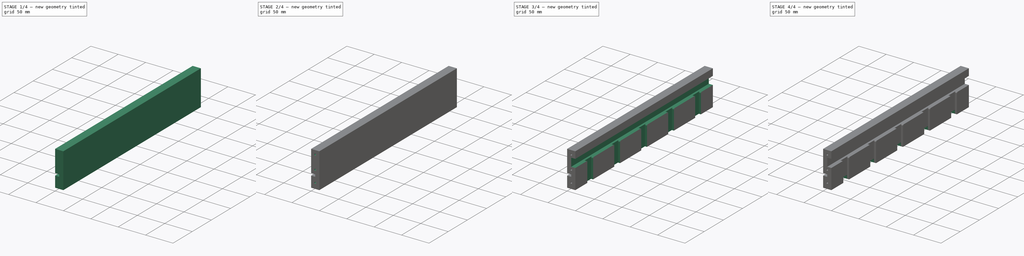
[diagram: build sequence overview — one tinted view per stage of 4, left to right]
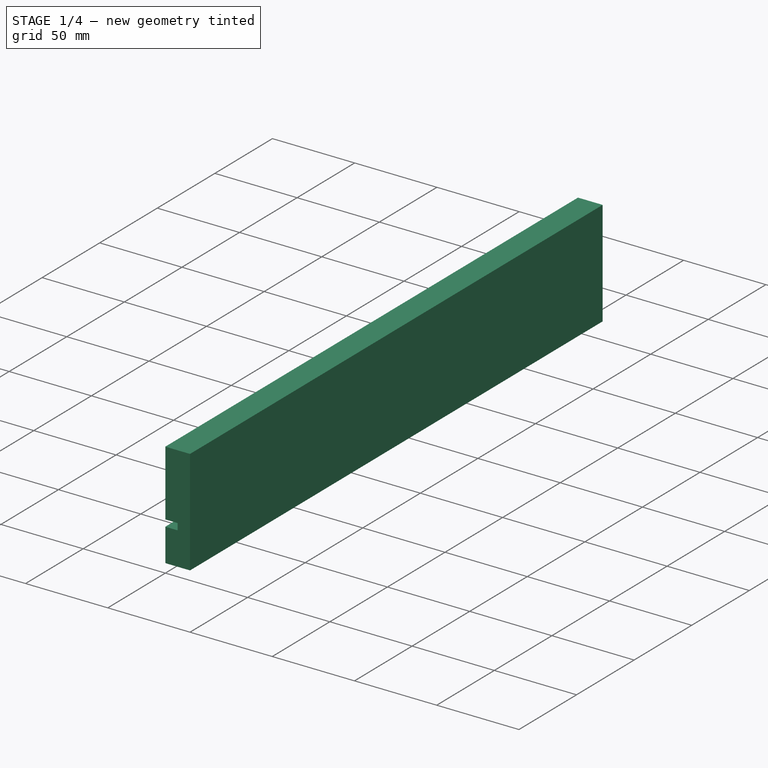
[diagram: stage 1 of 4 — iso view after this stage's code; geometry added in this stage tinted green]
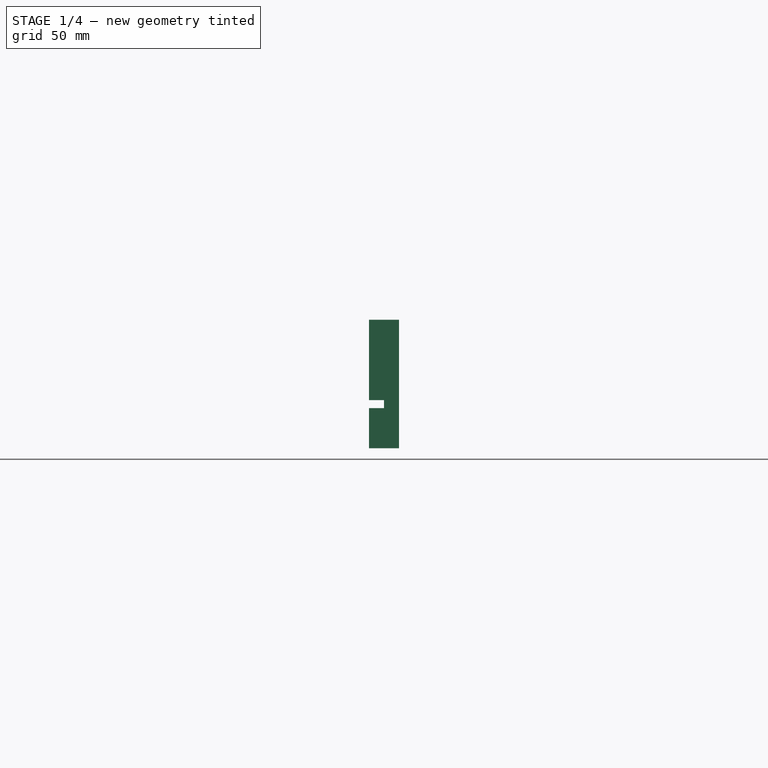
[diagram: stage 1 of 4 — front view after this stage's code; geometry added in this stage tinted green]
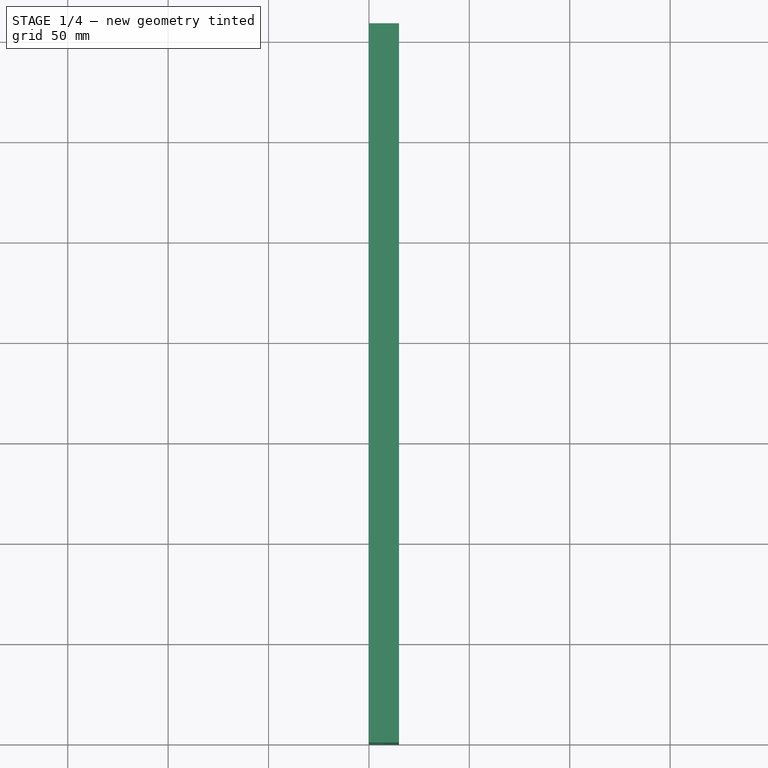
[diagram: stage 1 of 4 — top view after this stage's code; geometry added in this stage tinted green]
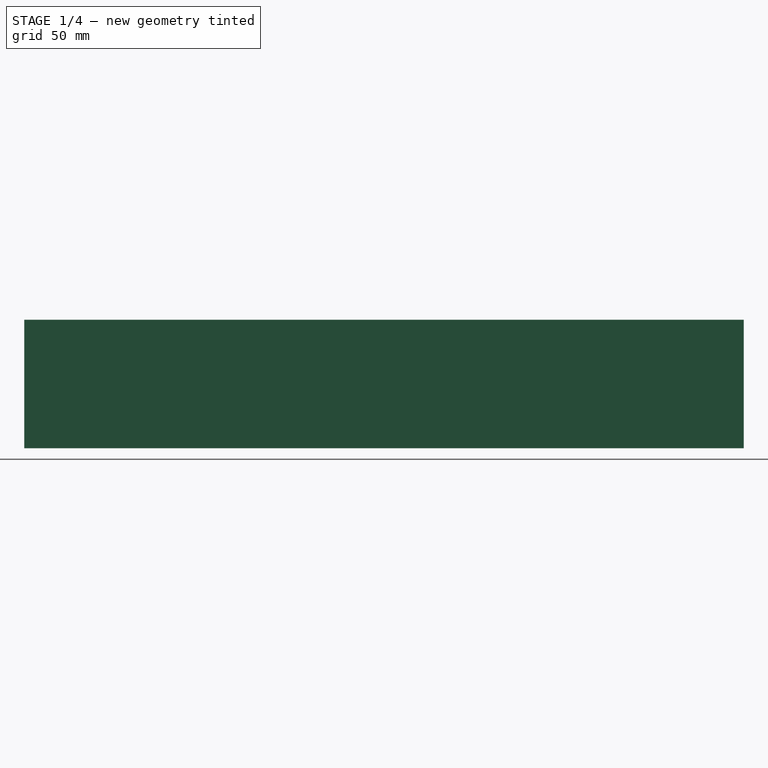
[diagram: stage 1 of 4 — right view after this stage's code; geometry added in this stage tinted green]
FCSTD DOCUMENT  (FreeCAD 0.19R24291 (Git))
Label: InnerRightWall
License: All rights reserved
LicenseURL: http://en.wikipedia.org/wiki/All_rights_reserved
objects: Sketcher::SketchObject×7, PartDesign::Pocket×6, PartDesign::CoordinateSystem×2, PartDesign::LinearPattern×2, PartDesign::MultiTransform×2, App::FeaturePython×1, PartDesign::Pad×1, PartDesign::Body×1, App::Part×1
note: 28 computed .brp shape members not serialized (recipe doc carries the construction recipe); baked Part::Feature solids carry a one-line shape summary decoded from their .brp

FEATURE [PartDesign::CoordinateSystem] LCS_0
  AttacherType = Attacher::AttachEngine3D
  MapMode = 2
  Support = -> [X_Axis]
FEATURE [PartDesign::CoordinateSystem] LCS_0001
  AttacherType = Attacher::AttachEngine3D
  MapMode = 2
  Support = -> [X_Axis001]
FEATURE [Sketcher::SketchObject] Sketch
  FullyConstrained = true
  MapMode = 5
  Placement = pos=(0,0,0) rot=(0.57735,0.57735,0.57735;2.0944rad)
  Support = -> [YZ_Plane001]
  expr: Constraints[7] = <<Attributes>>.InnerWallDepth
  expr: Constraints[8] = <<Attributes>>.DrawerHeight_DH
  sketch-geometry (4):
    g0: LineSegment StartX=358.3 StartY=0 StartZ=0 EndX=0 EndY=0 EndZ=0
    g1: LineSegment StartX=0 StartY=0 StartZ=0 EndX=0 EndY=64 EndZ=0
    g2: LineSegment StartX=0 StartY=64 StartZ=0 EndX=358.3 EndY=64 EndZ=0
    g3: LineSegment StartX=358.3 StartY=64 StartZ=0 EndX=358.3 EndY=0 EndZ=0
  constraints (11):
    c: Coincident(g0,g1)
    c: Coincident(g1,g2)
    c: Coincident(g2,g3)
    c: Horizontal(g0)
    c: Horizontal(g2)
    c: Vertical(g1)
    c: Vertical(g3)
    c: Distance(g2) = 358.3
    c: Distance(g3) = 64
    c: Coincident(g3,g0)
    c: Coincident(g-1,g0)
FEATURE [App::FeaturePython] PropertyBag  label="Attributes"  # WARN: FeaturePython — macro-defined, semantics opaque (R4)
  BackWidth = 395.8
  Back_Space = 100
  BottomDepth = 365.8
  BottomWidth = 365.8
  Bottom_Height_BH = 4
  Bottom_Space_Height = 20
  Box_Tolerance = 0.2
  Boxes_Depth = 5
  Boxes_Height = 40
  Boxes_Width = 5
  CableChannelHight = 15
  CableChannelRadius = 2
  CustomPropertyGroups = shape | attributes
  DrawerDepth_DD = 465.8
  DrawerHeight_DH = 64
  DrawerWidth_DW = 410.8
  InnerWallDepth = 358.3
  ScrewPreWhole = 3
  ScrewPreWholeDepth = 20
  WallThickness_WT = 15
  expr: BottomDepth = Boxes_Depth * 70mm + WallThickness_WT + Box_Tolerance * (Boxes_Width - 1)
  expr: DrawerHeight_DH = Boxes_Height + Bottom_Height_BH + Bottom_Space_Height
  expr: BackWidth = DrawerWidth_DW - WallThickness_WT
  expr: DrawerWidth_DW = Boxes_Width * 70mm + WallThickness_WT * 4 + Box_Tolerance * (Boxes_Width - 1)
  expr: BottomWidth = Boxes_Width * 70mm + WallThickness_WT + Box_Tolerance * (Boxes_Width - 1)
  expr: DrawerDepth_DD = Boxes_Depth * 70mm + WallThickness_WT + Back_Space + Box_Tolerance * (Boxes_Width - 1)
  expr: InnerWallDepth = Boxes_Depth * 70mm + WallThickness_WT * 0.5 + Box_Tolerance * (Boxes_Width - 1)
FEATURE [PartDesign::Pad] Pad
  Direction = (1,1,1)
  Length = 15
  Length2 = 100
  Placement = pos=(0,0,0) rot=(0.57735,0.57735,0.57735;2.0944rad)
  Profile = -> Sketch
  Type = 0
  expr: Length = <<Attributes>>.WallThickness_WT
FEATURE [Sketcher::SketchObject] Sketch001
  FullyConstrained = true
  MapMode = 5
  Placement = pos=(3e-16,0,0) rot=(0.57735,0.57735,-0.57735;4.18879rad)
  Support = -> [Pad]
  expr: Constraints[9] = <<Attributes>>.Bottom_Space_Height
  expr: Constraints[10] = <<Attributes>>.Bottom_Height_BH
  expr: Constraints[11] = <<Attributes>>.InnerWallDepth
  sketch-geometry (4):
    g0: LineSegment StartX=0 StartY=-20 StartZ=0 EndX=358.3 EndY=-20 EndZ=0
    g1: LineSegment StartX=358.3 StartY=-20 StartZ=0 EndX=358.3 EndY=-24 EndZ=0
    g2: LineSegment StartX=358.3 StartY=-24 StartZ=0 EndX=0 EndY=-24 EndZ=0
    g3: LineSegment StartX=0 StartY=-24 StartZ=0 EndX=0 EndY=-20 EndZ=0
  constraints (12):
    c: Coincident(g0,g1)
    c: Coincident(g1,g2)
    c: Coincident(g2,g3)
    c: Coincident(g3,g0)
    c: Horizontal(g0)
    c: Horizontal(g2)
    c: Vertical(g1)
    c: Vertical(g3)
    c: PointOnObject(g0,g-2)
    c: DistanceY(g0,g-1) = 20
    c: Distance(g3) = 4
    c: Distance(g2) = 358.3
FEATURE [PartDesign::Pocket] Pocket
  BaseFeature = -> Pad
  Length = 7.5
  Length2 = 100
  Placement = pos=(0,0,0) rot=(0.57735,0.57735,0.57735;2.0944rad)
  Profile = -> Sketch001
  Type = 0
  expr: Length = <<Attributes>>.WallThickness_WT / 2
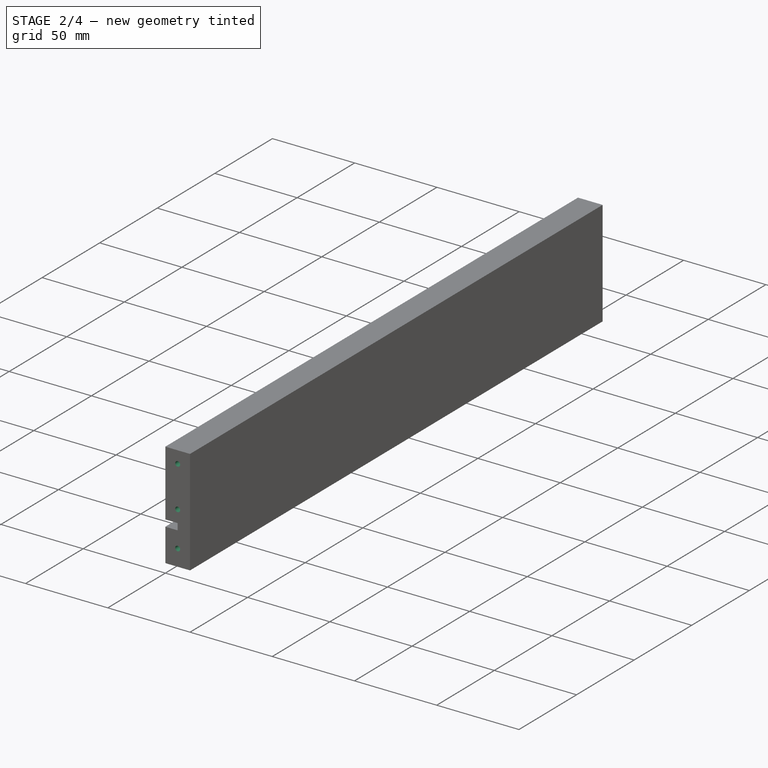
[diagram: stage 2 of 4 — iso view after this stage's code; geometry added in this stage tinted green]
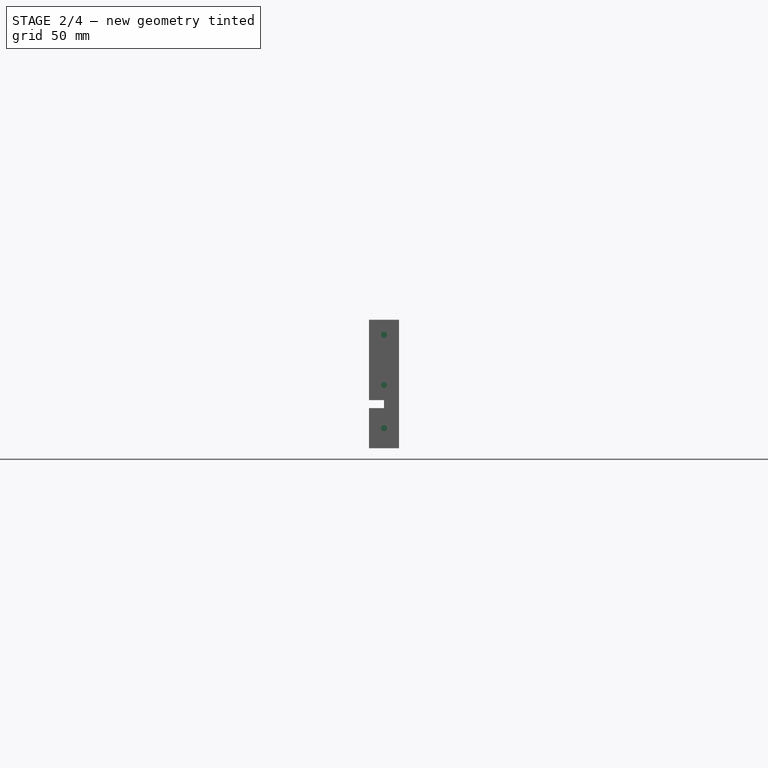
[diagram: stage 2 of 4 — front view after this stage's code; geometry added in this stage tinted green]
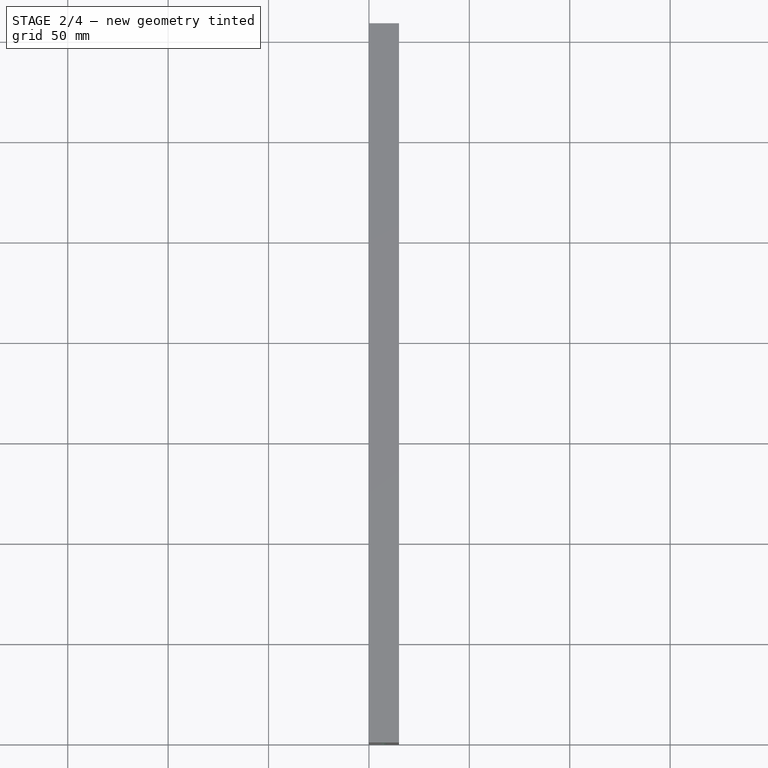
[diagram: stage 2 of 4 — top view after this stage's code; geometry added in this stage tinted green]
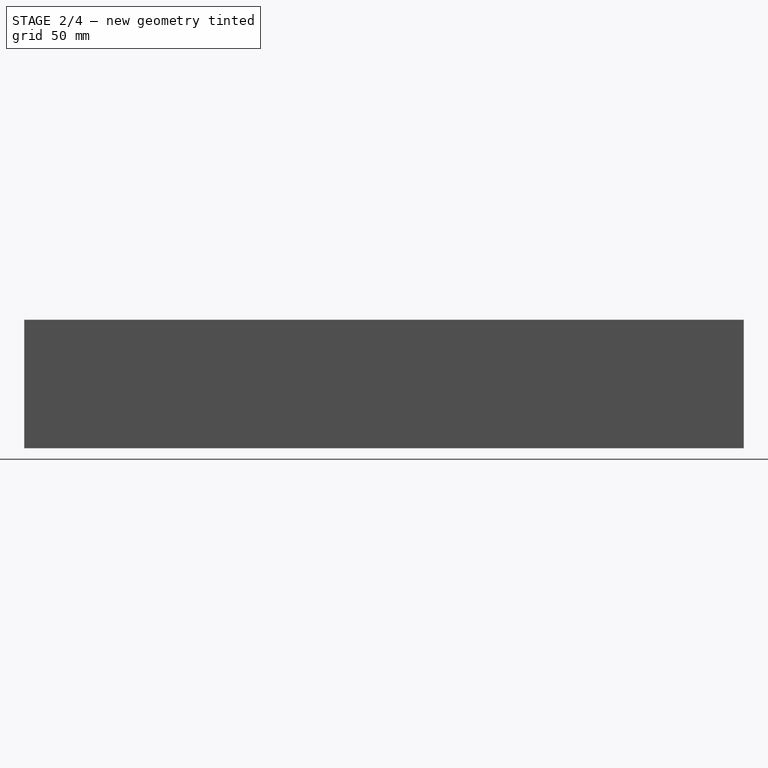
[diagram: stage 2 of 4 — right view after this stage's code; geometry added in this stage tinted green]
FEATURE [Sketcher::SketchObject] Sketch002
  FullyConstrained = true
  MapMode = 5
  Placement = pos=(0,0,0) rot=(-0.57735,-0.57735,0.57735;4.18879rad)
  Support = -> [Pocket]
  expr: Constraints[3] = <<Attributes>>.WallThickness_WT / 2
  expr: Constraints[4] = <<Attributes>>.Bottom_Space_Height / 2
  expr: Constraints[5] = <<Attributes>>.DrawerHeight_DH - <<Attributes>>.WallThickness_WT / 2
  expr: Constraints[6] = <<Attributes>>.DrawerHeight_DH - <<Attributes>>.WallThickness_WT - <<Attributes>>.Bottom_Space_Height - <<Attributes>>.Bottom_Height_BH
  expr: Constraints[12] = <<Attributes>>.ScrewPreWhole / 2
  sketch-geometry (5):
    g0: LineSegment StartX=-56.5 StartY=7.5 StartZ=0 EndX=-31.5 EndY=7.5 EndZ=0
    g1: LineSegment StartX=-31.5 StartY=7.5 StartZ=0 EndX=-10 EndY=7.5 EndZ=0
    g2: Circle CenterX=-56.5 CenterY=7.5 CenterZ=0 NormalX=0 NormalY=0 NormalZ=1 AngleXU=0 Radius=1.5
    g3: Circle CenterX=-31.5 CenterY=7.5 CenterZ=0 NormalX=0 NormalY=0 NormalZ=1 AngleXU=0 Radius=1.5
    g4: Circle CenterX=-10 CenterY=7.5 CenterZ=0 NormalX=0 NormalY=0 NormalZ=1 AngleXU=0 Radius=1.5
  constraints (13):
    c: Horizontal(g0)
    c: Coincident(g0,g1)
    c: Horizontal(g1)
    c: DistanceY(g-1,g1) = 7.5
    c: DistanceX(g1,g-1) = 10
    c: DistanceX(g0,g-1) = 56.5
    c: Distance(g0) = 25
    c: Coincident(g2,g0)
    c: Coincident(g3,g0)
    c: Coincident(g4,g1)
    c: Equal(g2,g3)
    c: Equal(g3,g4)
    c: Radius(g2) = 1.5
FEATURE [PartDesign::Pocket] Pocket001
  BaseFeature = -> Pocket
  Length = 20
  Length2 = 100
  Placement = pos=(0,0,0) rot=(0.57735,0.57735,0.57735;2.0944rad)
  Profile = -> Sketch002
  Type = 0
  expr: Length = <<Attributes>>.ScrewPreWholeDepth
FEATURE [Sketcher::SketchObject] Sketch003
  FullyConstrained = true
  MapMode = 5
  Placement = pos=(1.577e-13,358.3,-7.88e-14) rot=(0.57735,0.57735,0.57735;4.18879rad)
  Support = -> [Pocket001]
  expr: Constraints[3] = <<Attributes>>.DrawerHeight_DH - <<Attributes>>.WallThickness_WT - <<Attributes>>.Bottom_Space_Height - <<Attributes>>.Bottom_Height_BH
  expr: Constraints[4] = <<Attributes>>.WallThickness_WT / 2
  expr: Constraints[5] = <<Attributes>>.Bottom_Space_Height / 2
  expr: Constraints[6] = <<Attributes>>.DrawerHeight_DH - <<Attributes>>.WallThickness_WT / 2
  expr: Constraints[12] = <<Attributes>>.ScrewPreWhole / 2
  sketch-geometry (5):
    g0: LineSegment StartX=10 StartY=7.5 StartZ=0 EndX=31.5 EndY=7.5 EndZ=0
    g1: LineSegment StartX=31.5 StartY=7.5 StartZ=0 EndX=56.5 EndY=7.5 EndZ=0
    g2: Circle CenterX=10 CenterY=7.5 CenterZ=0 NormalX=0 NormalY=0 NormalZ=1 AngleXU=0 Radius=1.5
    g3: Circle CenterX=31.5 CenterY=7.5 CenterZ=0 NormalX=0 NormalY=0 NormalZ=1 AngleXU=0 Radius=1.5
    g4: Circle CenterX=56.5 CenterY=7.5 CenterZ=0 NormalX=0 NormalY=0 NormalZ=1 AngleXU=0 Radius=1.5
  constraints (13):
    c: Horizontal(g0)
    c: Coincident(g0,g1)
    c: Horizontal(g1)
    c: Distance(g1) = 25
    c: DistanceY(g-1,g0) = 7.5
    c: DistanceX(g-1,g0) = 10
    c: DistanceX(g-1,g1) = 56.5
    c: Coincident(g2,g0)
    c: Coincident(g3,g0)
    c: Coincident(g4,g1)
    c: Equal(g2,g3)
    c: Equal(g3,g4)
    c: Radius(g2) = 1.5
FEATURE [PartDesign::Pocket] Pocket002
  BaseFeature = -> Pocket001
  Length = 20
  Length2 = 100
  Placement = pos=(0,0,0) rot=(0.57735,0.57735,0.57735;2.0944rad)
  Profile = -> Sketch003
  Type = 0
  expr: Length = <<Attributes>>.ScrewPreWholeDepth
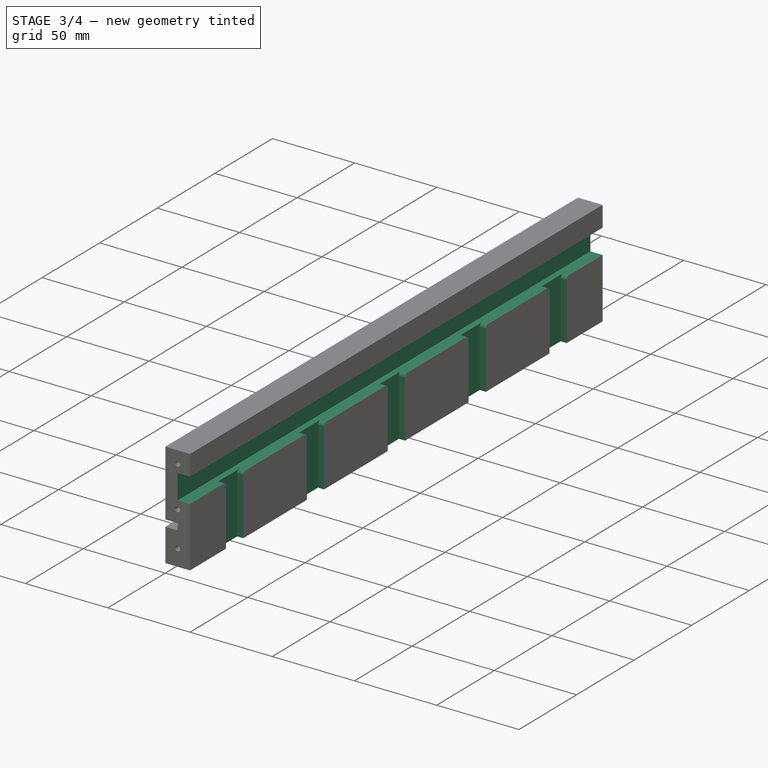
[diagram: stage 3 of 4 — iso view after this stage's code; geometry added in this stage tinted green]
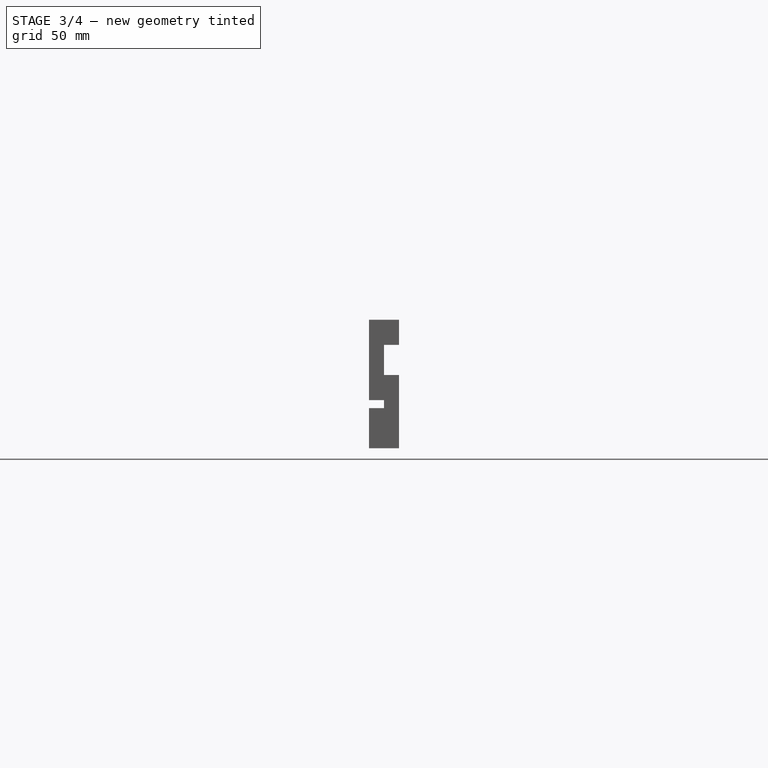
[diagram: stage 3 of 4 — front view after this stage's code; geometry added in this stage tinted green]
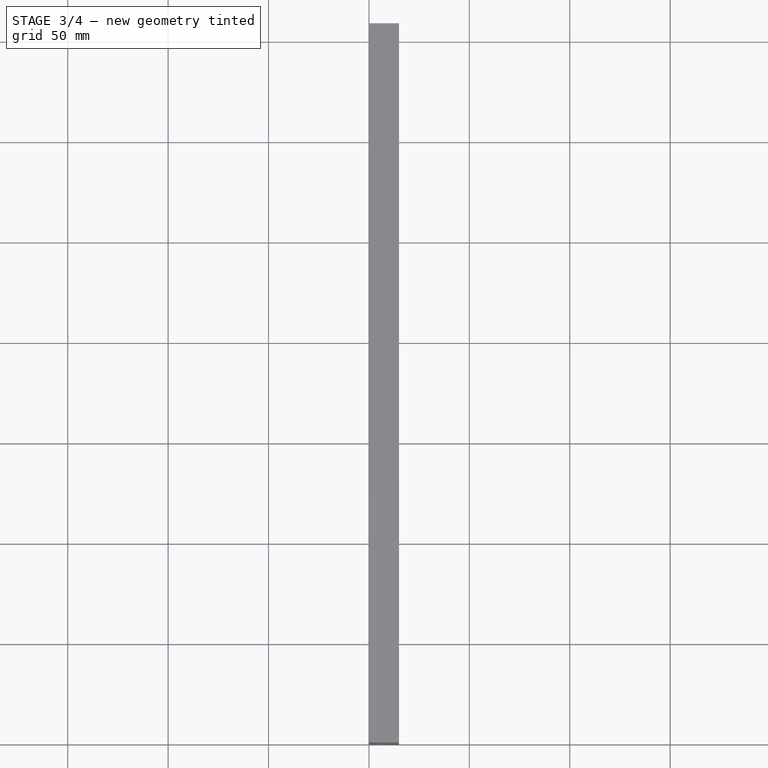
[diagram: stage 3 of 4 — top view after this stage's code; geometry added in this stage tinted green]
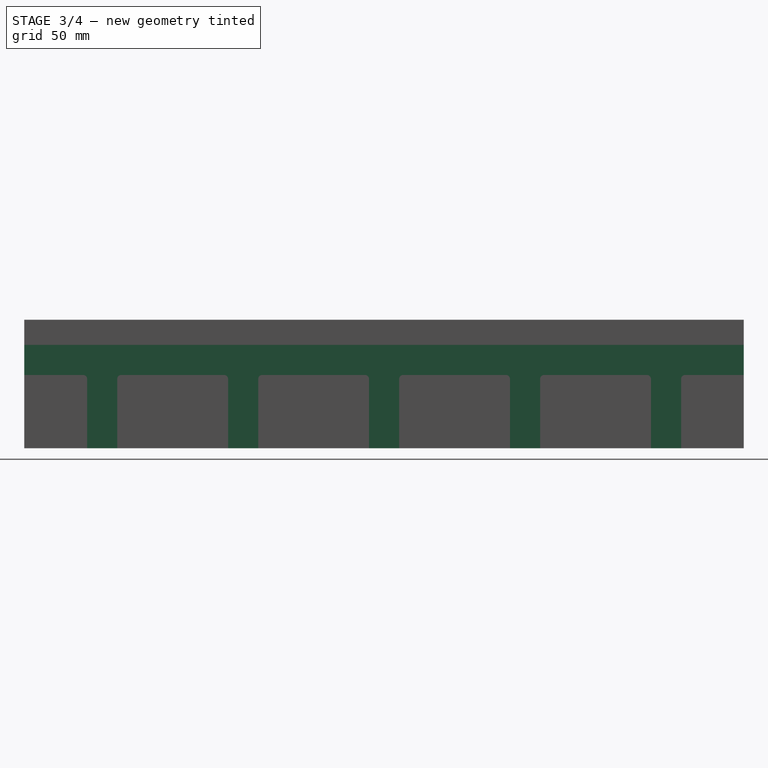
[diagram: stage 3 of 4 — right view after this stage's code; geometry added in this stage tinted green]
FEATURE [Sketcher::SketchObject] Sketch004
  FullyConstrained = true
  MapMode = 5
  Placement = pos=(15,-3.3e-15,5e-15) rot=(0.57735,0.57735,0.57735;2.0944rad)
  Support = -> [Pocket002]
  expr: Constraints[2] = (<<Attributes>>.DrawerHeight_DH - <<Attributes>>.WallThickness_WT - <<Attributes>>.Bottom_Space_Height - <<Attributes>>.Bottom_Height_BH) / 2
  expr: Constraints[3] = <<Attributes>>.DrawerHeight_DH - <<Attributes>>.WallThickness_WT / 2
  expr: Constraints[16] = <<Attributes>>.InnerWallDepth
  expr: Constraints[17] = <<Attributes>>.CableChannelHight
  sketch-geometry (6):
    g0: LineSegment StartX=0 StartY=56.5 StartZ=0 EndX=0 EndY=44 EndZ=0
    g1: LineSegment StartX=0 StartY=36.5 StartZ=0 EndX=358.3 EndY=36.5 EndZ=0
    g2: LineSegment StartX=358.3 StartY=36.5 StartZ=0 EndX=358.3 EndY=51.5 EndZ=0
    g3: LineSegment StartX=358.3 StartY=51.5 StartZ=0 EndX=0 EndY=51.5 EndZ=0
    g4: LineSegment StartX=0 StartY=51.5 StartZ=0 EndX=0 EndY=44 EndZ=0
    g5: LineSegment StartX=0 StartY=44 StartZ=0 EndX=0 EndY=36.5 EndZ=0
  constraints (18):
    c: PointOnObject(g0,g-2)
    c: PointOnObject(g0,g-2)
    c: Distance(g0) = 12.5
    c: DistanceY(g-1,g0) = 56.5
    c: Coincident(g1,g2)
    c: Coincident(g2,g3)
    c: Horizontal(g1)
    c: Horizontal(g3)
    c: Vertical(g2)
    c: Coincident(g3,g4)
    c: Vertical(g4)
    c: Coincident(g4,g5)
    c: Coincident(g5,g1)
    c: Vertical(g5)
    c: Coincident(g4,g0)
    c: Equal(g4,g5)
    c: Distance(g3) = 358.3
    c: Distance(g2) = 15
FEATURE [PartDesign::Pocket] Pocket003
  BaseFeature = -> Pocket002
  Length = 7.5
  Length2 = 100
  Placement = pos=(0,0,0) rot=(0.57735,0.57735,0.57735;2.0944rad)
  Profile = -> Sketch004
  Type = 0
  expr: Length = <<Attributes>>.WallThickness_WT / 2
FEATURE [Sketcher::SketchObject] Sketch005
  FullyConstrained = true
  MapMode = 5
  Placement = pos=(15,-3.3e-15,6.6e-15) rot=(0.57735,0.57735,0.57735;2.0944rad)
  Support = -> [Pocket003]
  expr: Constraints[6] = (<<Attributes>>.WallThickness_WT / 2 + 70mm + <<Attributes>>.Box_Tolerance / 2) / 2 - <<Attributes>>.CableChannelHight / 2
  expr: Constraints[7] = <<Attributes>>.CableChannelHight
  expr: Constraints[22] = <<Attributes>>.DrawerHeight_DH - <<Attributes>>.WallThickness_WT / 2 - (<<Attributes>>.DrawerHeight_DH - <<Attributes>>.WallThickness_WT - <<Attributes>>.Bottom_Space_Height - <<Attributes>>.Bottom_Height_BH) / 2 - <<Attributes>>.CableChannelHight / 2
  expr: Constraints[23] = <<Attributes>>.CableChannelRadius
  sketch-geometry (8):
    g0: LineSegment StartX=46.3 StartY=34.5 StartZ=0 EndX=46.3 EndY=0 EndZ=0
    g1: LineSegment StartX=46.3 StartY=0 StartZ=0 EndX=31.3 EndY=0 EndZ=0
    g2: LineSegment StartX=31.3 StartY=0 StartZ=0 EndX=31.3 EndY=34.5 EndZ=0
    g3: ArcOfCircle CenterX=29.3 CenterY=34.5 CenterZ=0 NormalX=0 NormalY=0 NormalZ=1 AngleXU=0 Radius=2 StartAngle=0 EndAngle=1.5708
    g4: ArcOfCircle CenterX=48.3 CenterY=34.5 CenterZ=0 NormalX=0 NormalY=0 NormalZ=1 AngleXU=0 Radius=2 StartAngle=1.5708 EndAngle=3.14159
    g5: LineSegment StartX=29.3 StartY=36.5 StartZ=0 EndX=48.3 EndY=36.5 EndZ=0
    g6: LineSegment StartX=29.3 StartY=34.5 StartZ=0 EndX=31.3 EndY=34.5 EndZ=0
    g7: LineSegment StartX=46.3 StartY=34.5 StartZ=0 EndX=48.3 EndY=34.5 EndZ=0
  constraints (24):
    c: Coincident(g0,g1)
    c: Coincident(g1,g2)
    c: Horizontal(g1)
    c: Vertical(g0)
    c: Vertical(g2)
    c: PointOnObject(g1,g-1)
    c: DistanceX(g-1,g1) = 31.3
    c: Distance(g1) = 15
    c: Coincident(g3,g2)
    c: Coincident(g4,g0)
    c: Coincident(g5,g3)
    c: Coincident(g5,g4)
    c: Horizontal(g5)
    c: Equal(g4,g3)
    c: Coincident(g6,g3)
    c: Coincident(g6,g2)
    c: Coincident(g7,g0)
    c: Coincident(g7,g4)
    c: Horizontal(g7)
    c: Horizontal(g6)
    c: Angle(g3) = 1.5708
    c: Angle(g4) = 1.5708
    c: DistanceY(g1,g3) = 36.5
    c: Radius(g3) = 2
FEATURE [PartDesign::Pocket] Pocket004
  BaseFeature = -> Pocket003
  Length = 3.75
  Length2 = 100
  Placement = pos=(0,0,0) rot=(0.57735,0.57735,0.57735;2.0944rad)
  Profile = -> Sketch005
  Type = 0
  expr: Length = <<Attributes>>.WallThickness_WT / 4
FEATURE [PartDesign::LinearPattern] LinearPattern
  Direction = -> Y_Axis001
  Length = 280.8
  Occurrences = 5
  Placement = pos=(0,0,0) rot=(0.57735,0.57735,0.57735;2.0944rad)
  expr: Length = (<<Attributes>>.Boxes_Depth - 1) * (70mm + <<Attributes>>.Box_Tolerance)
  expr: Occurrences = <<Attributes>>.Boxes_Depth
FEATURE [PartDesign::MultiTransform] MultiTransform
  BaseFeature = -> Pocket004
  Originals = -> [Pocket004]
  Placement = pos=(0,0,0) rot=(0.57735,0.57735,0.57735;2.0944rad)
  Transformations = -> [LinearPattern]
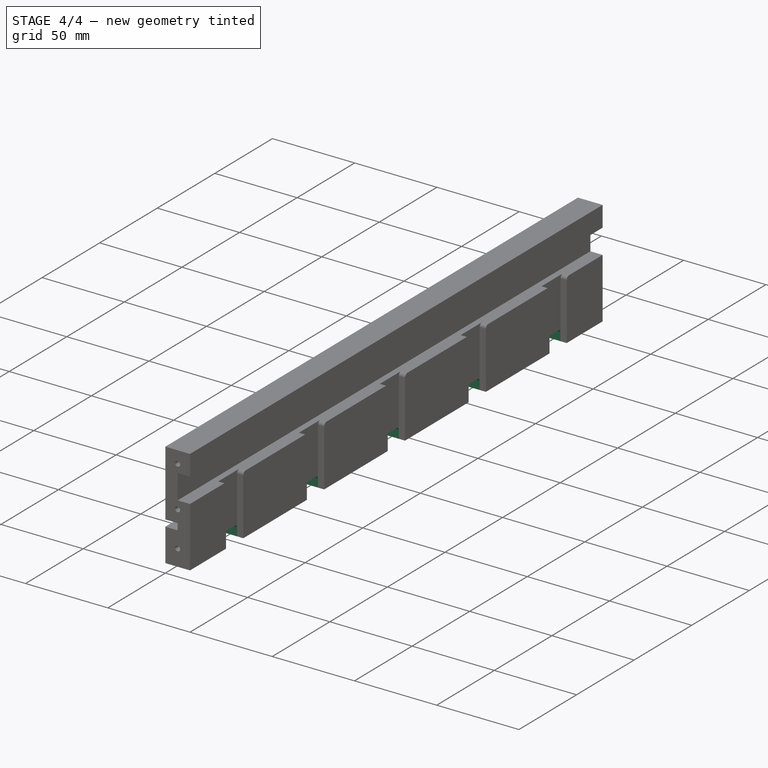
[diagram: stage 4 of 4 — iso view after this stage's code; geometry added in this stage tinted green]
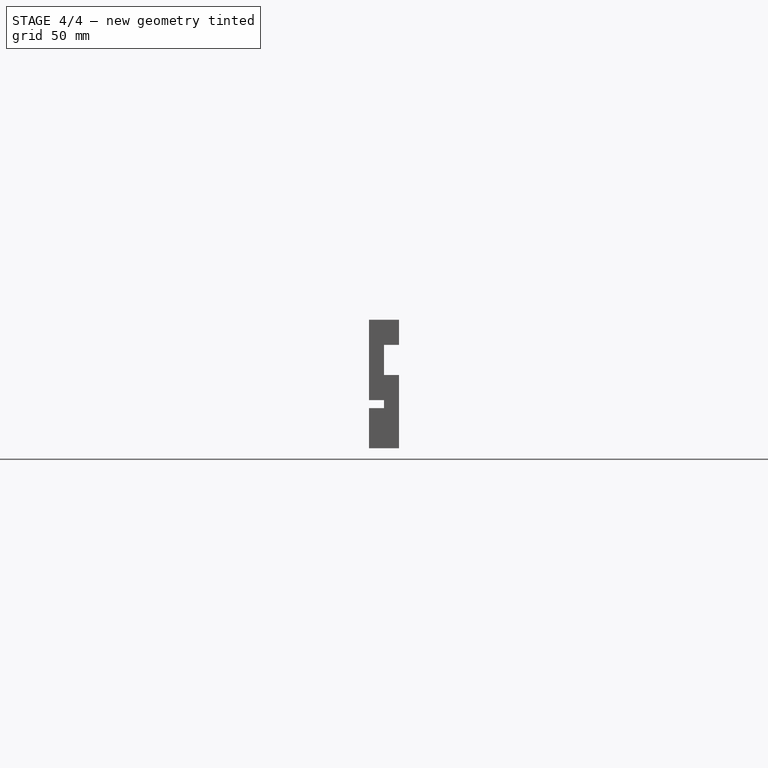
[diagram: stage 4 of 4 — front view after this stage's code; geometry added in this stage tinted green]
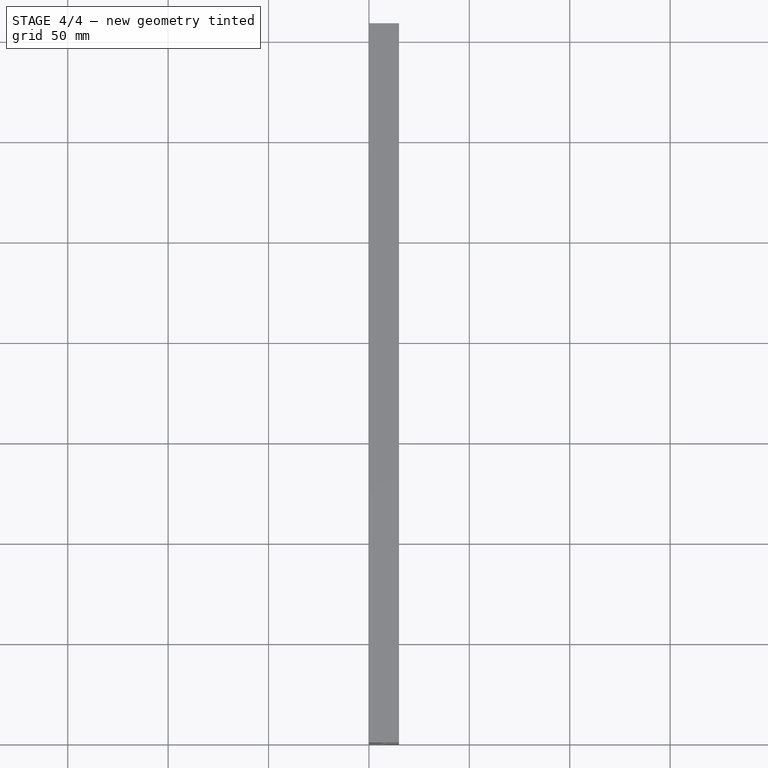
[diagram: stage 4 of 4 — top view after this stage's code; geometry added in this stage tinted green]
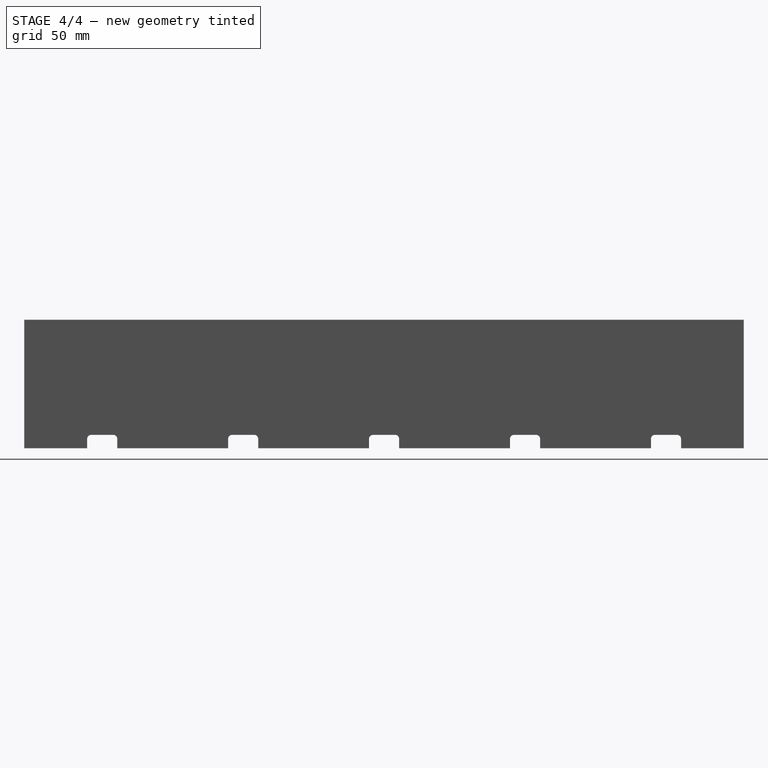
[diagram: stage 4 of 4 — right view after this stage's code; geometry added in this stage tinted green]
FEATURE [Sketcher::SketchObject] Sketch006
  FullyConstrained = true
  MapMode = 5
  Placement = pos=(11.25,0,4.9e-15) rot=(0.57735,0.57735,0.57735;2.0944rad)
  Support = -> [MultiTransform]
  expr: Constraints[7] = (<<Attributes>>.WallThickness_WT / 2 + 70mm + <<Attributes>>.Box_Tolerance / 2) / 2 - <<Attributes>>.CableChannelHight / 2
  expr: Constraints[8] = <<Attributes>>.CableChannelHight
  expr: Constraints[9] = <<Attributes>>.Bottom_Space_Height / 3
  expr: Constraints[19] = <<Attributes>>.CableChannelRadius
  sketch-geometry (8):
    g0: LineSegment StartX=31.3 StartY=0 StartZ=0 EndX=46.3 EndY=0 EndZ=0
    g1: LineSegment StartX=46.3 StartY=0 StartZ=0 EndX=46.3 EndY=4.66667 EndZ=0
    g2: LineSegment StartX=44.3 StartY=6.66667 StartZ=0 EndX=33.3 EndY=6.66667 EndZ=0
    g3: LineSegment StartX=31.3 StartY=4.66667 StartZ=0 EndX=31.3 EndY=0 EndZ=0
    g4: ArcOfCircle CenterX=33.3 CenterY=4.66667 CenterZ=0 NormalX=0 NormalY=0 NormalZ=1 AngleXU=0 Radius=2 StartAngle=1.5708 EndAngle=3.14159
    g5: GeomPoint X=31.3 Y=6.66667 Z=0
    g6: ArcOfCircle CenterX=44.3 CenterY=4.66667 CenterZ=0 NormalX=0 NormalY=0 NormalZ=1 AngleXU=0 Radius=2 StartAngle=1e-16 EndAngle=1.5708
    g7: GeomPoint X=46.3 Y=6.66667 Z=0
  constraints (20):
    c: Coincident(g0,g1)
    c: Coincident(g3,g0)
    c: Horizontal(g0)
    c: Horizontal(g2)
    c: Vertical(g1)
    c: Vertical(g3)
    c: PointOnObject(g0,g-1)
    c: DistanceX(g-1,g0) = 31.3
    c: Distance(g0) = 15
    c: Distance(g3,g5) = 6.66667
    c: PointOnObject(g5,g2)
    c: PointOnObject(g5,g3)
    c: Tangent(g2,g4) = -1.5708
    c: Tangent(g3,g4) = -1.5708
    c: PointOnObject(g7,g1)
    c: PointOnObject(g7,g2)
    c: Tangent(g1,g6) = -1.5708
    c: Tangent(g2,g6) = -1.5708
    c: Equal(g4,g6)
    c: Radius(g4) = 2
FEATURE [PartDesign::Pocket] Pocket005
  BaseFeature = -> MultiTransform
  Length = 5
  Length2 = 100
  Placement = pos=(0,0,0) rot=(0.57735,0.57735,0.57735;2.0944rad)
  Profile = -> Sketch006
  Type = 1
FEATURE [PartDesign::LinearPattern] LinearPattern001
  Direction = -> Y_Axis001
  Length = 280.8
  Occurrences = 5
  Placement = pos=(0,0,0) rot=(0.57735,0.57735,0.57735;2.0944rad)
  expr: Length = (<<Attributes>>.Boxes_Depth - 1) * (70mm + <<Attributes>>.Box_Tolerance)
  expr: Occurrences = <<Attributes>>.Boxes_Depth
FEATURE [PartDesign::MultiTransform] MultiTransform001
  BaseFeature = -> Pocket005
  Originals = -> [Pocket005]
  Placement = pos=(0,0,0) rot=(0.57735,0.57735,0.57735;2.0944rad)
  Transformations = -> [LinearPattern001]
FEATURE [PartDesign::Body] InnerRightWall001
  Group = -> [LCS_0001,Sketch,Pad,Sketch001,Pocket,Sketch002,Pocket001,Sketch003,Pocket002,Sketch004,Pocket003,Sketch005,Pocket004,MultiTransform,LinearPattern,Sketch006,Pocket005,MultiTransform001,LinearPattern001]
  Origin = -> Origin001
  Tip = -> MultiTransform001
FEATURE [App::Part] InnerRightWall
  Group = -> [LCS_0,InnerRightWall001,PropertyBag]
  Origin = -> Origin
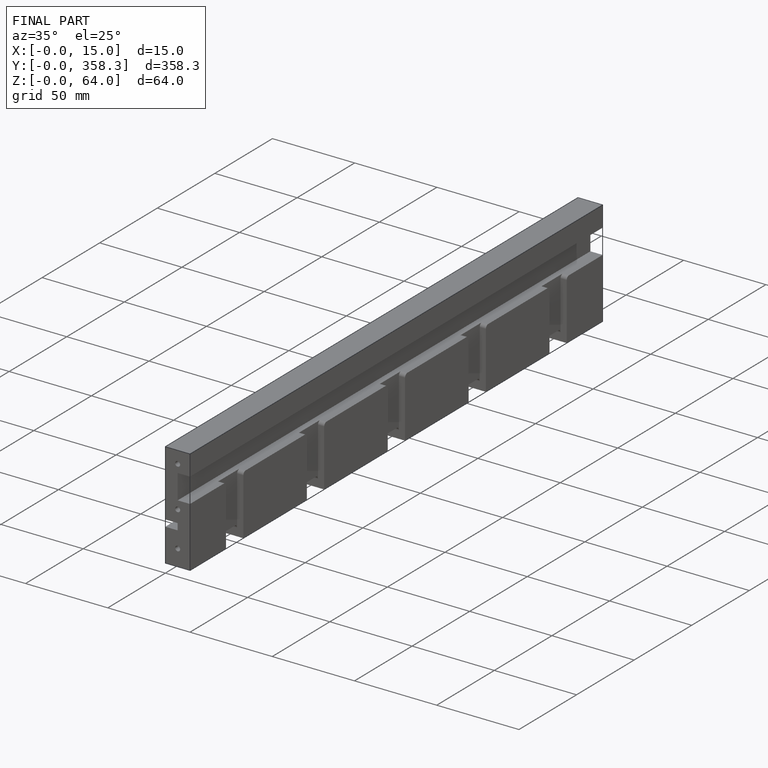
[diagram: finished part — iso view with bounding-box wireframe]
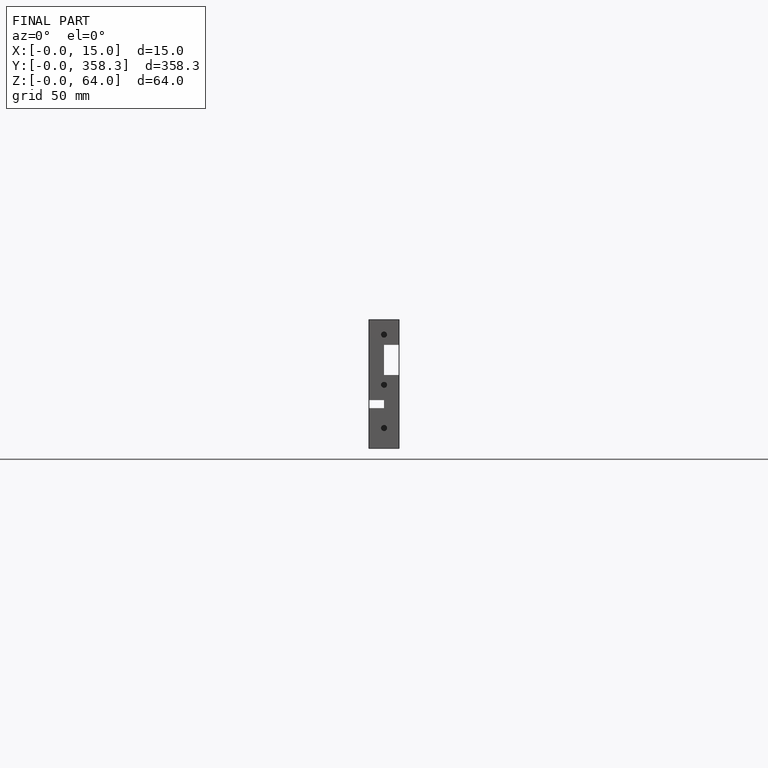
[diagram: finished part — front view with bounding-box wireframe]
